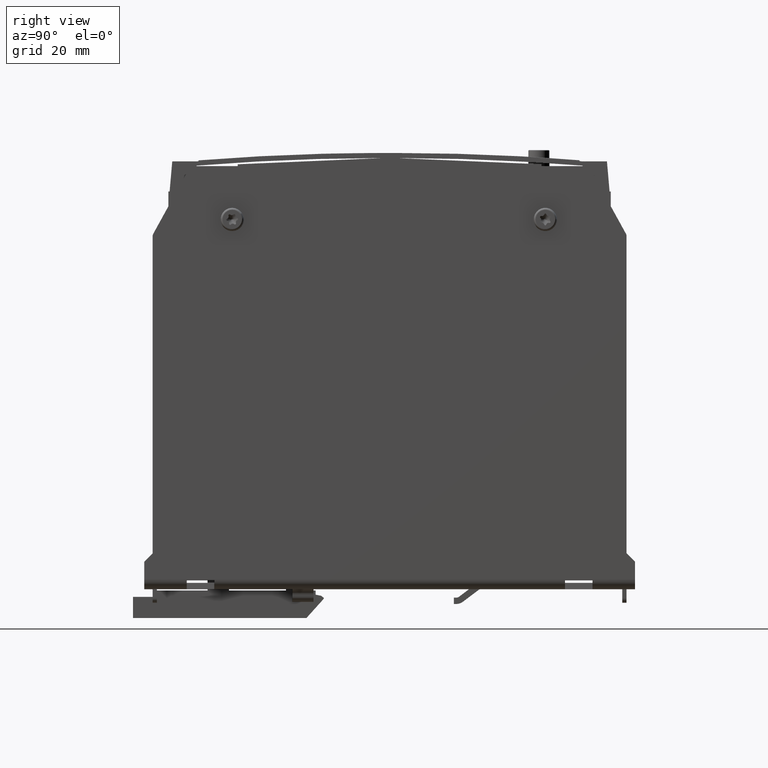
[diagram: clean part render]
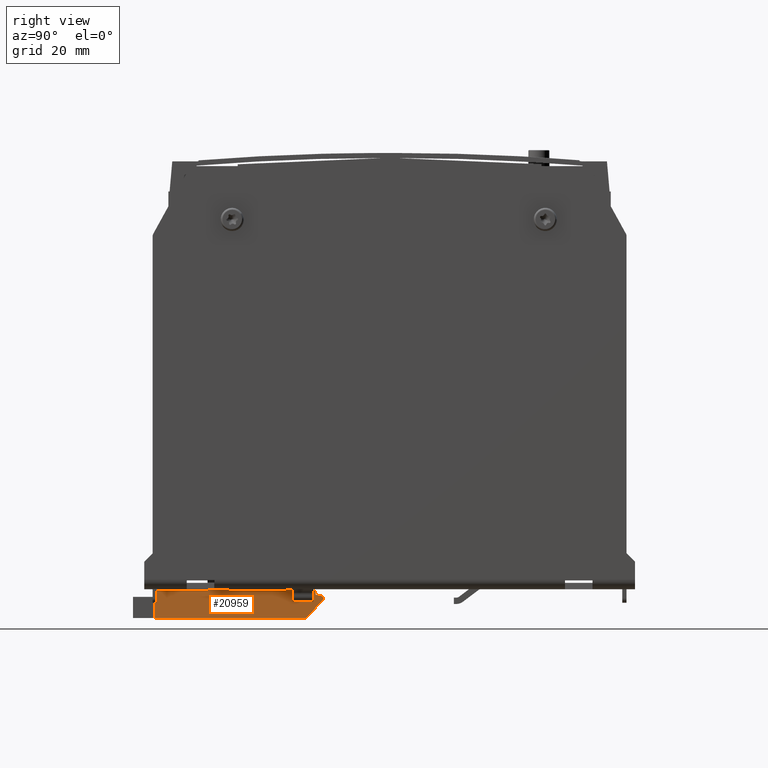
[diagram: same view with one face highlighted and labeled with its STEP entity id]
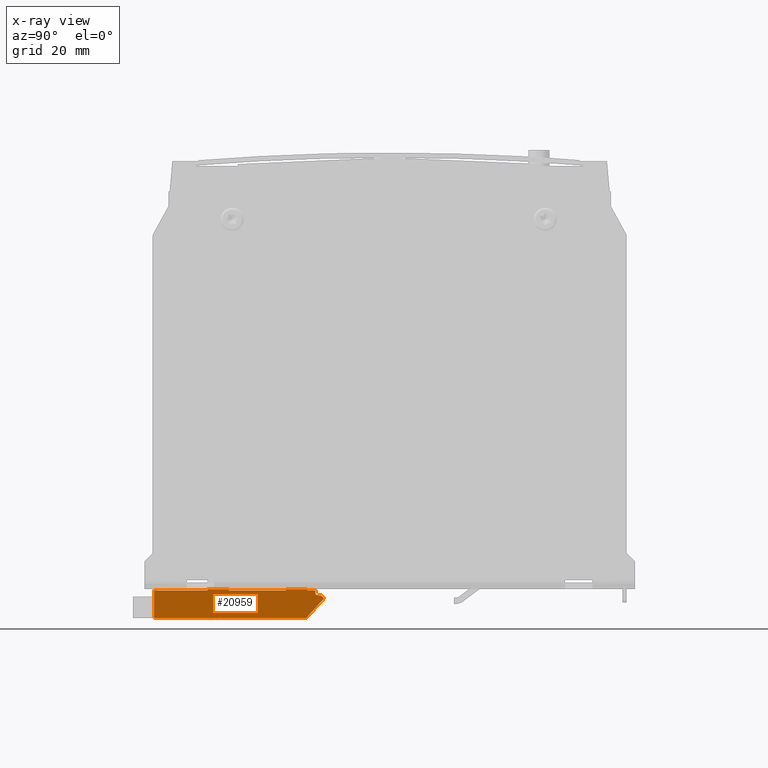
[diagram: x-ray of the same camera — body ghosted, the highlighted face saturated]
A machine part, right view. The second image highlights one B-rep face of the part: STEP entity #20959.
The next image is the same camera in x-ray: the body ghosted, the highlighted face saturated — about 0% of this face is hidden behind the body in this view.
In plain terms, the highlighted planar face has unit normal (1, 0, 0).
Its self-contained STEP definition (entity closure, byte-faithful):
#20823=CARTESIAN_POINT('',(0.393700787401574,-2.387795275590551,-0.011811023622045));
#20824=DIRECTION('',(1.0,0.0,0.0));
#20825=DIRECTION('',(0.0,0.0,-1.0));
#20826=AXIS2_PLACEMENT_3D('',#20823,#20824,#20825);
#20827=PLANE('',#20826);
#20828=CARTESIAN_POINT('',(0.393700787401574,-0.964566929133858,2.108987E-015));
#20829=VERTEX_POINT('',#20828);
#20830=CARTESIAN_POINT('',(0.393700787401574,-0.76771653543307,2.108987E-015));
#20831=VERTEX_POINT('',#20830);
#20832=CARTESIAN_POINT('',(0.393700787401574,-0.964566929133858,2.108987E-015));
#20833=DIRECTION('',(0.0,1.0,0.0));
#20834=VECTOR('',#20833,0.196850393700788);
#20835=LINE('',#20832,#20834);
#20836=EDGE_CURVE('',#20829,#20831,#20835,.T.);
#20837=ORIENTED_EDGE('',*,*,#20836,.F.);
#20838=CARTESIAN_POINT('',(0.393700787401574,-0.964566929133858,-0.011811023622045));
#20839=VERTEX_POINT('',#20838);
#20840=CARTESIAN_POINT('',(0.393700787401574,-0.964566929133858,-0.011811023622045));
#20841=DIRECTION('',(0.0,0.0,1.0));
#20842=VECTOR('',#20841,0.011811023622047);
#20843=LINE('',#20840,#20842);
#20844=EDGE_CURVE('',#20839,#20829,#20843,.T.);
#20845=ORIENTED_EDGE('',*,*,#20844,.F.);
#20846=CARTESIAN_POINT('',(0.393700787401574,-1.496062992125984,-0.011811023622045));
#20847=VERTEX_POINT('',#20846);
#20848=CARTESIAN_POINT('',(0.393700787401574,-0.964566929133858,-0.011811023622045));
#20849=DIRECTION('',(0.0,-1.0,0.0));
#20850=VECTOR('',#20849,0.531496062992126);
#20851=LINE('',#20848,#20850);
#20852=EDGE_CURVE('',#20839,#20847,#20851,.T.);
#20853=ORIENTED_EDGE('',*,*,#20852,.T.);
#20854=CARTESIAN_POINT('',(0.393700787401574,-1.496062992125984,2.108987E-015));
#20855=VERTEX_POINT('',#20854);
#20856=CARTESIAN_POINT('',(0.393700787401574,-1.496062992125984,-0.011811023622045));
#20857=DIRECTION('',(0.0,0.0,1.0));
#20858=VECTOR('',#20857,0.011811023622047);
#20859=LINE('',#20856,#20858);
#20860=EDGE_CURVE('',#20847,#20855,#20859,.T.);
#20861=ORIENTED_EDGE('',*,*,#20860,.T.);
#20862=CARTESIAN_POINT('',(0.393700787401574,-1.692913385826771,2.108987E-015));
#20863=VERTEX_POINT('',#20862);
#20864=CARTESIAN_POINT('',(0.393700787401574,-1.692913385826771,2.108987E-015));
#20865=DIRECTION('',(0.0,1.0,0.0));
#20866=VECTOR('',#20865,0.196850393700788);
#20867=LINE('',#20864,#20866);
#20868=EDGE_CURVE('',#20863,#20855,#20867,.T.);
#20869=ORIENTED_EDGE('',*,*,#20868,.F.);
#20870=CARTESIAN_POINT('',(0.393700787401574,-1.692913385826771,-0.011811023622045));
#20871=VERTEX_POINT('',#20870);
#20872=CARTESIAN_POINT('',(0.393700787401574,-1.692913385826771,-0.011811023622045));
#20873=DIRECTION('',(0.0,0.0,1.0));
#20874=VECTOR('',#20873,0.011811023622047);
#20875=LINE('',#20872,#20874);
#20876=EDGE_CURVE('',#20871,#20863,#20875,.T.);
#20877=ORIENTED_EDGE('',*,*,#20876,.F.);
#20878=CARTESIAN_POINT('',(0.393700787401574,-2.190944881889764,-0.011811023622045));
#20879=VERTEX_POINT('',#20878);
#20880=CARTESIAN_POINT('',(0.393700787401574,-1.692913385826771,-0.011811023622045));
#20881=DIRECTION('',(0.0,-1.0,0.0));
#20882=VECTOR('',#20881,0.498031496062993);
#20883=LINE('',#20880,#20882);
#20884=EDGE_CURVE('',#20871,#20879,#20883,.T.);
#20885=ORIENTED_EDGE('',*,*,#20884,.T.);
#20886=CARTESIAN_POINT('',(0.393700787401574,-2.190944881889764,-0.267716535433069));
#20887=VERTEX_POINT('',#20886);
#20888=CARTESIAN_POINT('',(0.393700787401574,-2.190944881889764,-0.011811023622045));
#20889=DIRECTION('',(0.0,0.0,-1.0));
#20890=VECTOR('',#20889,0.255905511811024);
#20891=LINE('',#20888,#20890);
#20892=EDGE_CURVE('',#20879,#20887,#20891,.T.);
#20893=ORIENTED_EDGE('',*,*,#20892,.T.);
#20894=CARTESIAN_POINT('',(0.393700787401574,-0.773622047244094,-0.267716535433069));
#20895=VERTEX_POINT('',#20894);
#20896=CARTESIAN_POINT('',(0.393700787401574,-2.190944881889764,-0.267716535433069));
#20897=DIRECTION('',(0.0,1.0,0.0));
#20898=VECTOR('',#20897,1.41732283464567);
#20899=LINE('',#20896,#20898);
#20900=EDGE_CURVE('',#20887,#20895,#20899,.T.);
#20901=ORIENTED_EDGE('',*,*,#20900,.T.);
#20902=CARTESIAN_POINT('',(0.393700787401574,-0.62007874015748,-0.097189417014413));
#20903=VERTEX_POINT('',#20902);
#20904=CARTESIAN_POINT('',(0.393700787401574,-0.773622047244094,-0.267716535433069));
#20905=DIRECTION('',(0.0,0.669130606358859,0.743144825477394));
#20906=VECTOR('',#20905,0.229466871829606);
#20907=LINE('',#20904,#20906);
#20908=EDGE_CURVE('',#20895,#20903,#20907,.T.);
#20909=ORIENTED_EDGE('',*,*,#20908,.T.);
#20910=CARTESIAN_POINT('',(0.393700787401574,-0.610236220472441,-0.082867445886122));
#20911=VERTEX_POINT('',#20910);
#20912=CARTESIAN_POINT('',(0.393700787401574,-0.669536648956529,-0.052657315909236));
#20913=DIRECTION('',(1.0,0.0,0.0));
#20914=DIRECTION('',(0.0,0.743144825477394,-0.669130606358858));
#20915=AXIS2_PLACEMENT_3D('',#20912,#20913,#20914);
#20916=CIRCLE('',#20915,0.066552180817887);
#20917=EDGE_CURVE('',#20903,#20911,#20916,.T.);
#20918=ORIENTED_EDGE('',*,*,#20917,.T.);
#20919=CARTESIAN_POINT('',(0.393700787401574,-0.635643877434733,-0.061547890299983));
#20920=VERTEX_POINT('',#20919);
#20921=CARTESIAN_POINT('',(0.393700787401574,-0.610236220472441,-0.082867445886122));
#20922=DIRECTION('',(0.0,-0.766044443118975,0.642787609686543));
#20923=VECTOR('',#20922,0.03316734060343);
#20924=LINE('',#20921,#20923);
#20925=EDGE_CURVE('',#20911,#20920,#20924,.T.);
#20926=ORIENTED_EDGE('',*,*,#20925,.T.);
#20927=CARTESIAN_POINT('',(0.393700787401574,-0.688976377952755,-0.051181102362203));
#20928=VERTEX_POINT('',#20927);
#20929=CARTESIAN_POINT('',(0.393700787401574,-0.635643877434733,-0.061547890299983));
#20930=DIRECTION('',(0.0,-0.981627183447664,0.190808995376545));
#20931=VECTOR('',#20930,0.054330708661417);
#20932=LINE('',#20929,#20931);
#20933=EDGE_CURVE('',#20920,#20928,#20932,.T.);
#20934=ORIENTED_EDGE('',*,*,#20933,.T.);
#20935=CARTESIAN_POINT('',(0.393700787401574,-0.688976377952755,-0.011811023622045));
#20936=VERTEX_POINT('',#20935);
#20937=CARTESIAN_POINT('',(0.393700787401574,-0.688976377952755,-0.051181102362203));
#20938=DIRECTION('',(0.0,0.0,1.0));
#20939=VECTOR('',#20938,0.039370078740157);
#20940=LINE('',#20937,#20939);
#20941=EDGE_CURVE('',#20928,#20936,#20940,.T.);
#20942=ORIENTED_EDGE('',*,*,#20941,.T.);
#20943=CARTESIAN_POINT('',(0.393700787401574,-0.76771653543307,-0.011811023622045));
#20944=VERTEX_POINT('',#20943);
#20945=CARTESIAN_POINT('',(0.393700787401574,-0.688976377952755,-0.011811023622045));
#20946=DIRECTION('',(0.0,-1.0,0.0));
#20947=VECTOR('',#20946,0.078740157480315);
#20948=LINE('',#20945,#20947);
#20949=EDGE_CURVE('',#20936,#20944,#20948,.T.);
#20950=ORIENTED_EDGE('',*,*,#20949,.T.);
#20951=CARTESIAN_POINT('',(0.393700787401574,-0.76771653543307,-0.011811023622045));
#20952=DIRECTION('',(0.0,0.0,1.0));
#20953=VECTOR('',#20952,0.011811023622047);
#20954=LINE('',#20951,#20953);
#20955=EDGE_CURVE('',#20944,#20831,#20954,.T.);
#20956=ORIENTED_EDGE('',*,*,#20955,.T.);
#20957=EDGE_LOOP('',(#20837,#20845,#20853,#20861,#20869,#20877,#20885,#20893,#20901,#20909,#20918,#20926,#20934,#20942,#20950,#20956));
#20958=FACE_OUTER_BOUND('',#20957,.T.);
#20959=ADVANCED_FACE('',(#20958),#20827,.T.);